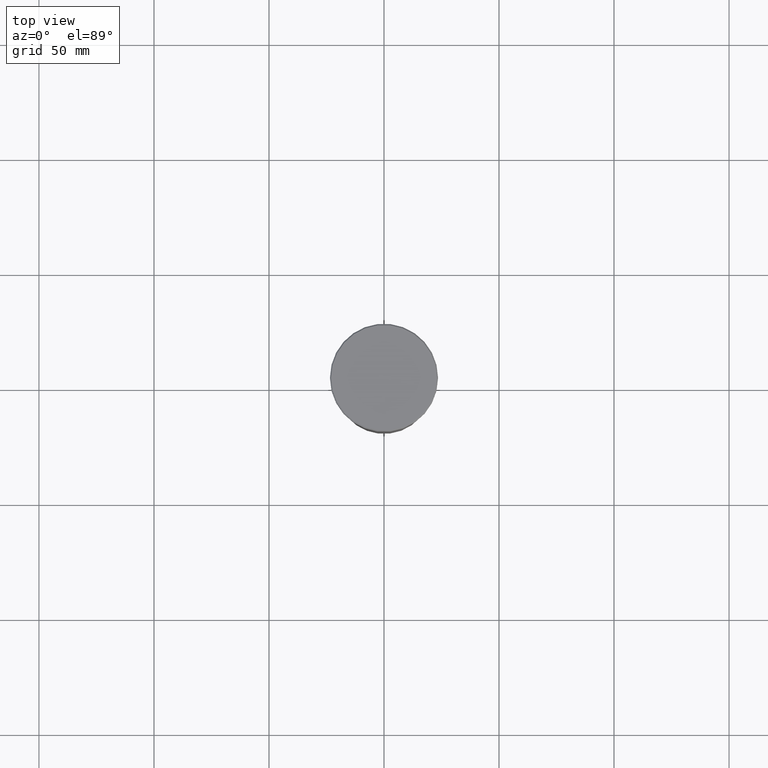
[diagram: clean part render]
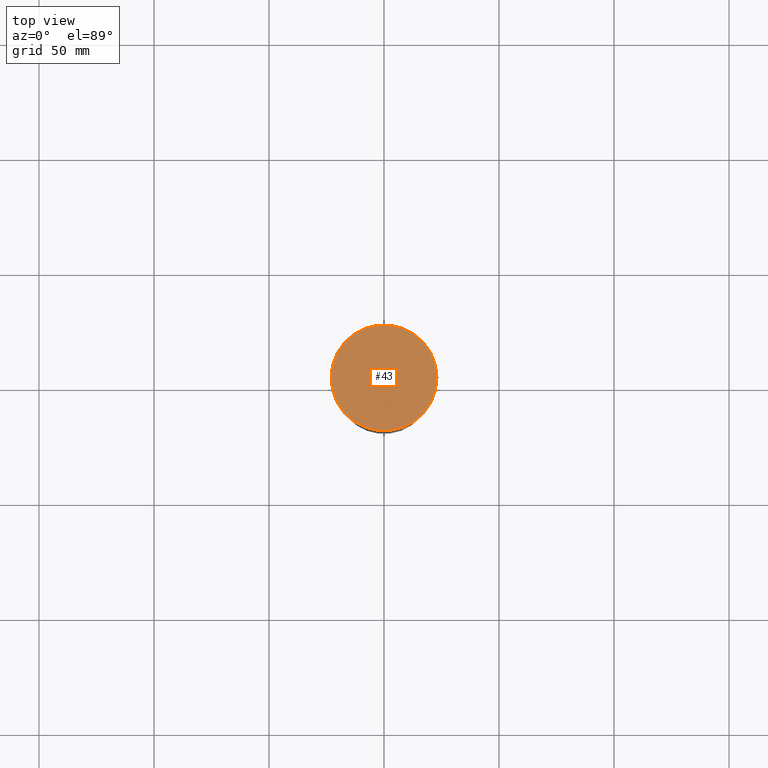
[diagram: same view with one face highlighted and labeled with its STEP entity id]
A machine part, top view. The second image highlights one B-rep face of the part: STEP entity #43.
In plain terms, the highlighted planar face has unit normal (0, -0, 1).
Its self-contained STEP definition (entity closure, byte-faithful):
#43 = ADVANCED_FACE ( 'NONE', ( #725 ), #818, .T. ) ;
#142 = VERTEX_POINT ( 'NONE', #640 ) ;
#169 = DIRECTION ( 'NONE',  ( 0.000000000000000000, -0.000000000000000000, 1.000000000000000000 ) ) ;
#196 = CIRCLE ( 'NONE', #361, 23.00000000000002487 ) ;
#229 = AXIS2_PLACEMENT_3D ( 'NONE', #812, #891, #354 ) ;
#247 = DIRECTION ( 'NONE',  ( 1.000000000000000000, 0.000000000000000000, 0.000000000000000000 ) ) ;
#328 = EDGE_CURVE ( 'NONE', #142, #663, #196, .T. ) ;
#354 = DIRECTION ( 'NONE',  ( 1.000000000000000000, 0.000000000000000000, 0.000000000000000000 ) ) ;
#361 = AXIS2_PLACEMENT_3D ( 'NONE', #571, #935, #482 ) ;
#368 = AXIS2_PLACEMENT_3D ( 'NONE', #1061, #169, #247 ) ;
#477 = CARTESIAN_POINT ( 'NONE',  ( -23.00000000000002487, 0.000000000000000000, 0.000000000000000000 ) ) ;
#482 = DIRECTION ( 'NONE',  ( 1.000000000000000000, 0.000000000000000000, 0.000000000000000000 ) ) ;
#571 = CARTESIAN_POINT ( 'NONE',  ( 0.000000000000000000, 0.000000000000000000, 0.000000000000000000 ) ) ;
#640 = CARTESIAN_POINT ( 'NONE',  ( 23.00000000000002487, 2.847303808017597717E-15, 0.000000000000000000 ) ) ;
#663 = VERTEX_POINT ( 'NONE', #477 ) ;
#725 = FACE_OUTER_BOUND ( 'NONE', #740, .T. ) ;
#740 = EDGE_LOOP ( 'NONE', ( #791, #861 ) ) ;
#791 = ORIENTED_EDGE ( 'NONE', *, *, #1137, .T. ) ;
#812 = CARTESIAN_POINT ( 'NONE',  ( 0.000000000000000000, 0.000000000000000000, 0.000000000000000000 ) ) ;
#818 = PLANE ( 'NONE',  #368 ) ;
#861 = ORIENTED_EDGE ( 'NONE', *, *, #328, .T. ) ;
#891 = DIRECTION ( 'NONE',  ( -0.000000000000000000, -0.000000000000000000, 1.000000000000000000 ) ) ;
#935 = DIRECTION ( 'NONE',  ( -0.000000000000000000, -0.000000000000000000, 1.000000000000000000 ) ) ;
#1061 = CARTESIAN_POINT ( 'NONE',  ( 0.000000000000000000, 0.000000000000000000, 0.000000000000000000 ) ) ;
#1137 = EDGE_CURVE ( 'NONE', #663, #142, #1172, .T. ) ;
#1172 = CIRCLE ( 'NONE', #229, 23.00000000000002487 ) ;